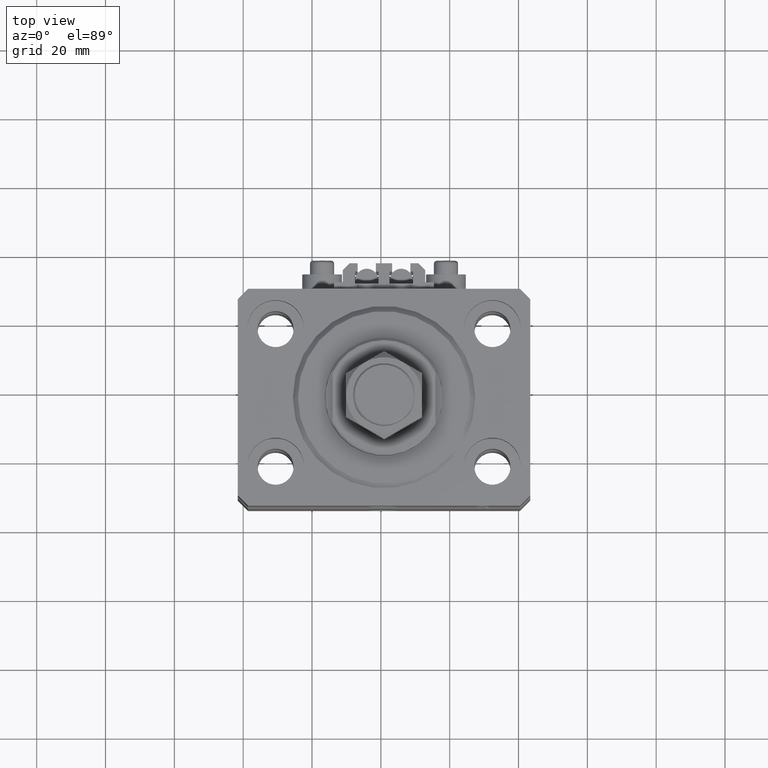
[diagram: clean part render]
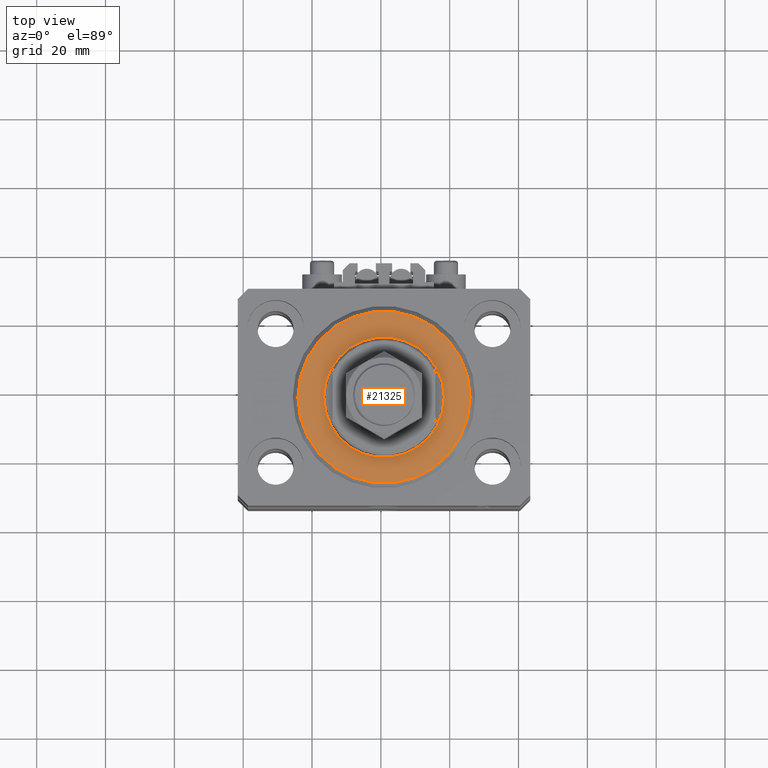
[diagram: same view with one face highlighted and labeled with its STEP entity id]
A machine part, top view. The second image highlights one B-rep face of the part: STEP entity #21325.
In plain terms, the highlighted planar face has unit normal (0, 0, -1).
Its self-contained STEP definition (entity closure, byte-faithful):
#565 = AXIS2_PLACEMENT_3D ( 'NONE', #22865, #46385, #3408 ) ;
#571 = DIRECTION ( 'NONE',  ( 1.000000000000000000, 0.000000000000000000, 0.000000000000000000 ) ) ;
#581 = ORIENTED_EDGE ( 'NONE', *, *, #3703, .T. ) ;
#2616 = AXIS2_PLACEMENT_3D ( 'NONE', #23259, #31686, #35533 ) ;
#3184 = CIRCLE ( 'NONE', #35083, 24.99999999999998224 ) ;
#3408 = DIRECTION ( 'NONE',  ( 1.000000000000000000, 0.000000000000000000, -0.000000000000000000 ) ) ;
#3703 = EDGE_CURVE ( 'NONE', #15471, #45342, #27130, .T. ) ;
#3928 = CARTESIAN_POINT ( 'NONE',  ( 0.000000000000000000, 0.000000000000000000, 0.000000000000000000 ) ) ;
#6661 = CARTESIAN_POINT ( 'NONE',  ( 17.50000000000000000, 0.000000000000000000, 2.168404344971008868E-16 ) ) ;
#9110 = CARTESIAN_POINT ( 'NONE',  ( 0.000000000000000000, 0.000000000000000000, 0.000000000000000000 ) ) ;
#11580 = DIRECTION ( 'NONE',  ( 1.000000000000000000, 0.000000000000000000, 0.000000000000000000 ) ) ;
#15302 = CIRCLE ( 'NONE', #41490, 17.50000000000000000 ) ;
#15471 = VERTEX_POINT ( 'NONE', #6661 ) ;
#15758 = ORIENTED_EDGE ( 'NONE', *, *, #45095, .T. ) ;
#16367 = PLANE ( 'NONE',  #565 ) ;
#18509 = FACE_BOUND ( 'NONE', #23330, .T. ) ;
#19675 = ORIENTED_EDGE ( 'NONE', *, *, #23815, .T. ) ;
#21325 = ADVANCED_FACE ( 'NONE', ( #18509, #24060 ), #16367, .F. ) ;
#22865 = CARTESIAN_POINT ( 'NONE',  ( 0.000000000000000000, 0.000000000000000000, 0.000000000000000000 ) ) ;
#23259 = CARTESIAN_POINT ( 'NONE',  ( 0.000000000000000000, 0.000000000000000000, 0.000000000000000000 ) ) ;
#23330 = EDGE_LOOP ( 'NONE', ( #581, #19675 ) ) ;
#23815 = EDGE_CURVE ( 'NONE', #45342, #15471, #15302, .T. ) ;
#24060 = FACE_OUTER_BOUND ( 'NONE', #32061, .T. ) ;
#24373 = CARTESIAN_POINT ( 'NONE',  ( -24.99999999999998224, 3.153465507804433615E-15, 0.000000000000000000 ) ) ;
#24732 = DIRECTION ( 'NONE',  ( -0.000000000000000000, -0.000000000000000000, -1.000000000000000000 ) ) ;
#27130 = CIRCLE ( 'NONE', #2616, 17.50000000000000000 ) ;
#30120 = VERTEX_POINT ( 'NONE', #24373 ) ;
#30963 = ORIENTED_EDGE ( 'NONE', *, *, #46618, .T. ) ;
#31686 = DIRECTION ( 'NONE',  ( 0.000000000000000000, 0.000000000000000000, 1.000000000000000000 ) ) ;
#31976 = CARTESIAN_POINT ( 'NONE',  ( 24.99999999999998224, 0.000000000000000000, 0.000000000000000000 ) ) ;
#32061 = EDGE_LOOP ( 'NONE', ( #15758, #30963 ) ) ;
#35083 = AXIS2_PLACEMENT_3D ( 'NONE', #9110, #24732, #40592 ) ;
#35533 = DIRECTION ( 'NONE',  ( 1.000000000000000000, 0.000000000000000000, 0.000000000000000000 ) ) ;
#38305 = AXIS2_PLACEMENT_3D ( 'NONE', #3928, #46648, #11580 ) ;
#39220 = DIRECTION ( 'NONE',  ( 0.000000000000000000, 0.000000000000000000, 1.000000000000000000 ) ) ;
#40592 = DIRECTION ( 'NONE',  ( 1.000000000000000000, 0.000000000000000000, 0.000000000000000000 ) ) ;
#41490 = AXIS2_PLACEMENT_3D ( 'NONE', #47128, #39220, #571 ) ;
#43307 = VERTEX_POINT ( 'NONE', #31976 ) ;
#45095 = EDGE_CURVE ( 'NONE', #43307, #30120, #48109, .T. ) ;
#45342 = VERTEX_POINT ( 'NONE', #46330 ) ;
#46330 = CARTESIAN_POINT ( 'NONE',  ( -17.50000000000000000, 2.143131898507868643E-15, 2.168404344971008868E-16 ) ) ;
#46385 = DIRECTION ( 'NONE',  ( 0.000000000000000000, 0.000000000000000000, 1.000000000000000000 ) ) ;
#46618 = EDGE_CURVE ( 'NONE', #30120, #43307, #3184, .T. ) ;
#46648 = DIRECTION ( 'NONE',  ( -0.000000000000000000, -0.000000000000000000, -1.000000000000000000 ) ) ;
#47128 = CARTESIAN_POINT ( 'NONE',  ( 0.000000000000000000, 0.000000000000000000, 0.000000000000000000 ) ) ;
#48109 = CIRCLE ( 'NONE', #38305, 24.99999999999998224 ) ;